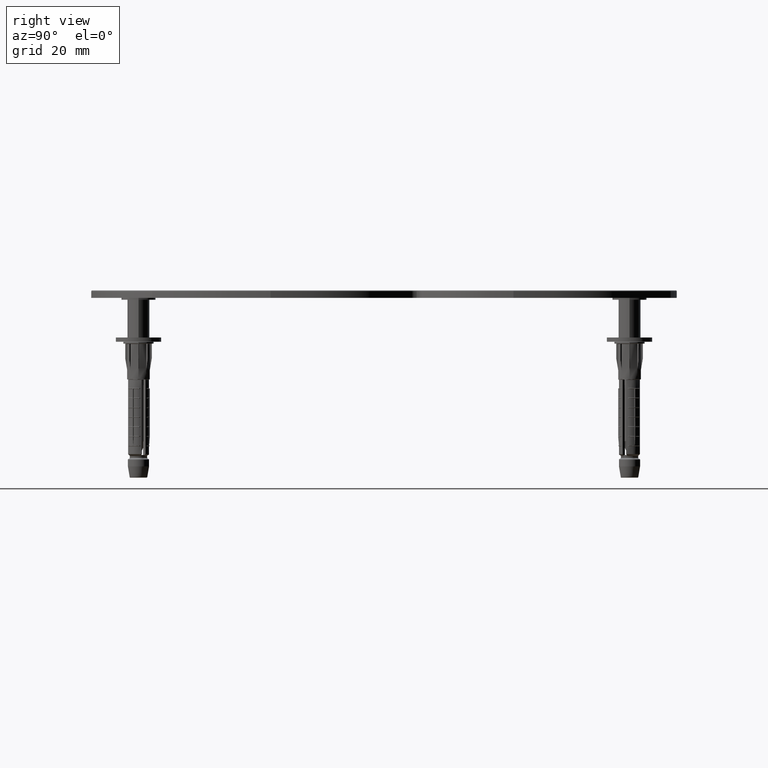
[diagram: clean part render]
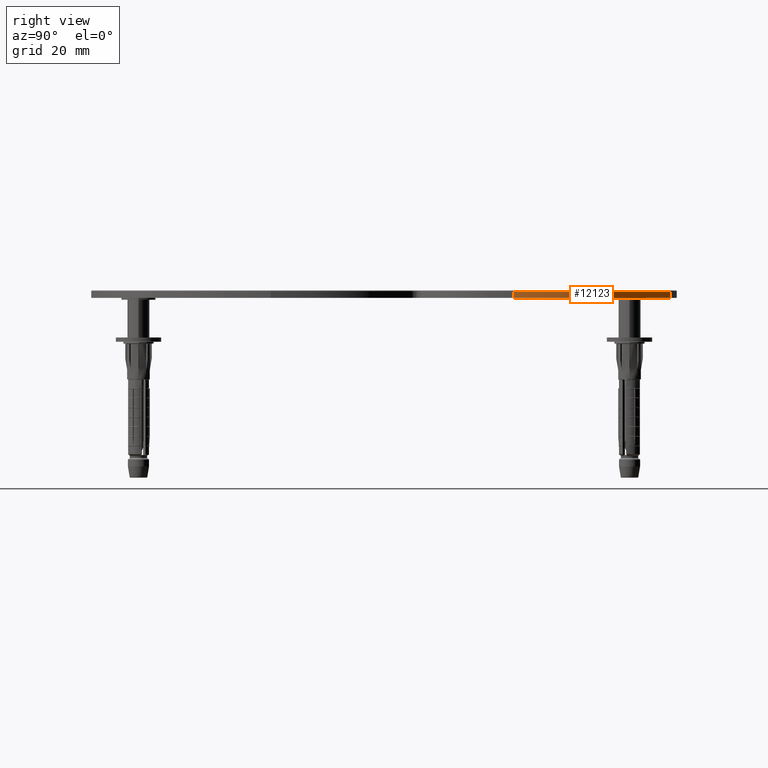
[diagram: same view with one face highlighted and labeled with its STEP entity id]
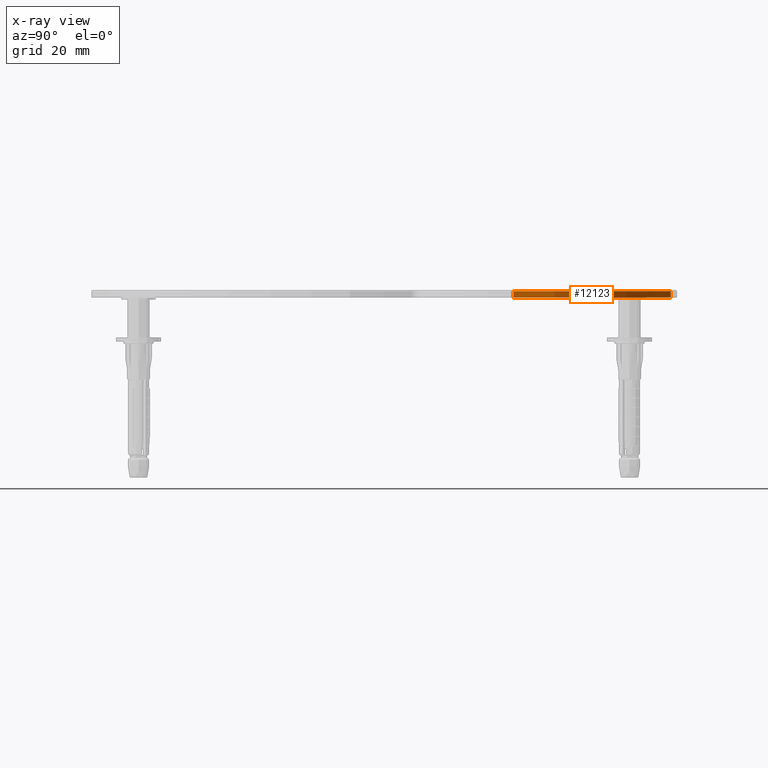
[diagram: x-ray of the same camera — body ghosted, the highlighted face saturated]
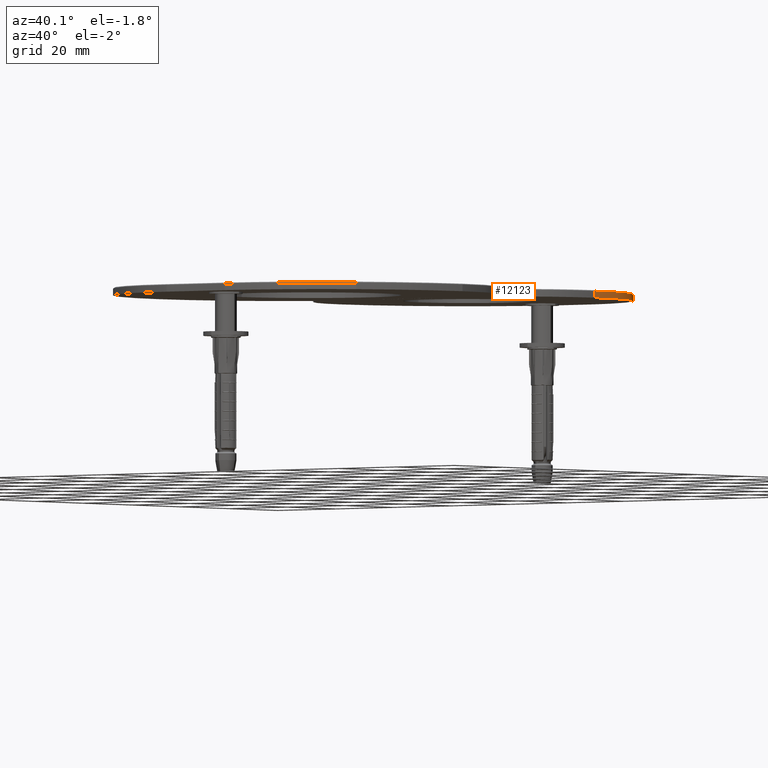
[diagram: same view with one face highlighted and labeled with its STEP entity id]
A machine part, right view. The second image highlights one B-rep face of the part: STEP entity #12123.
The next image is the same camera in x-ray: the body ghosted, the highlighted face saturated — about 0% of this face is hidden behind the body in this view.
A second angle (auxiliary view) of the same face is appended — the face is thin or edge-on in the first view.
In plain terms, the highlighted cylindrical surface (partial cylindrical patch) has radius 43.9541 mm, axis along (-0, -0, -1).
Its self-contained STEP definition (entity closure, byte-faithful):
#2054 = AXIS2_PLACEMENT_3D ( 'NONE', #9475, #18590, #12637 ) ;
#3456 = CARTESIAN_POINT ( 'NONE',  ( 43.95411394600482424, 111.7999999999999972, 1.750000000000000000 ) ) ;
#3809 = VERTEX_POINT ( 'NONE', #28980 ) ;
#3948 = CARTESIAN_POINT ( 'NONE',  ( 0.000000000000000000, 111.7999999999999972, 0.000000000000000000 ) ) ;
#5041 = AXIS2_PLACEMENT_3D ( 'NONE', #16736, #7198, #13512 ) ;
#5667 = CARTESIAN_POINT ( 'NONE',  ( 14.25389544789701368, 153.3787277022613580, 2.000000000000000000 ) ) ;
#7198 = DIRECTION ( 'NONE',  ( -0.000000000000000000, -0.000000000000000000, -1.000000000000000000 ) ) ;
#7592 = ORIENTED_EDGE ( 'NONE', *, *, #31120, .T. ) ;
#7797 = CYLINDRICAL_SURFACE ( 'NONE', #5041, 43.95411394600482424 ) ;
#8268 = EDGE_CURVE ( 'NONE', #34721, #33114, #20127, .T. ) ;
#9456 = CARTESIAN_POINT ( 'NONE',  ( 43.95411394600482424, 111.7999999999999972, 0.000000000000000000 ) ) ;
#9475 = CARTESIAN_POINT ( 'NONE',  ( 0.000000000000000000, 111.7999999999999972, 1.750000000000000000 ) ) ;
#10230 = AXIS2_PLACEMENT_3D ( 'NONE', #3948, #35199, #31808 ) ;
#10238 = FACE_OUTER_BOUND ( 'NONE', #32060, .T. ) ;
#11925 = DIRECTION ( 'NONE',  ( -0.000000000000000000, -0.000000000000000000, -1.000000000000000000 ) ) ;
#12123 = ADVANCED_FACE ( 'NONE', ( #10238 ), #7797, .T. ) ;
#12378 = VECTOR ( 'NONE', #11925, 1000.000000000000000 ) ;
#12637 = DIRECTION ( 'NONE',  ( 1.000000000000000000, 0.000000000000000000, 0.000000000000000000 ) ) ;
#13512 = DIRECTION ( 'NONE',  ( -1.000000000000000000, 0.000000000000000000, 0.000000000000000000 ) ) ;
#14340 = CARTESIAN_POINT ( 'NONE',  ( 14.25389544789701368, 153.3787277022613580, 0.000000000000000000 ) ) ;
#16736 = CARTESIAN_POINT ( 'NONE',  ( 0.000000000000000000, 111.7999999999999972, 2.000000000000000000 ) ) ;
#17281 = ORIENTED_EDGE ( 'NONE', *, *, #8268, .T. ) ;
#18486 = VERTEX_POINT ( 'NONE', #3456 ) ;
#18590 = DIRECTION ( 'NONE',  ( -0.000000000000000000, -0.000000000000000000, -1.000000000000000000 ) ) ;
#20127 = CIRCLE ( 'NONE', #10230, 43.95411394600482424 ) ;
#20664 = LINE ( 'NONE', #27322, #12378 ) ;
#22648 = ORIENTED_EDGE ( 'NONE', *, *, #39400, .T. ) ;
#24570 = EDGE_CURVE ( 'NONE', #3809, #33114, #24961, .T. ) ;
#24622 = CIRCLE ( 'NONE', #2054, 43.95411394600482424 ) ;
#24961 = LINE ( 'NONE', #5667, #28863 ) ;
#27322 = CARTESIAN_POINT ( 'NONE',  ( 43.95411394600482424, 111.7999999999999972, 2.000000000000000000 ) ) ;
#27388 = DIRECTION ( 'NONE',  ( -0.000000000000000000, -0.000000000000000000, -1.000000000000000000 ) ) ;
#27419 = ORIENTED_EDGE ( 'NONE', *, *, #24570, .F. ) ;
#28863 = VECTOR ( 'NONE', #27388, 1000.000000000000000 ) ;
#28980 = CARTESIAN_POINT ( 'NONE',  ( 14.25389544789701368, 153.3787277022613580, 1.750000000000000000 ) ) ;
#31120 = EDGE_CURVE ( 'NONE', #18486, #34721, #20664, .T. ) ;
#31808 = DIRECTION ( 'NONE',  ( -1.000000000000000000, 0.000000000000000000, 0.000000000000000000 ) ) ;
#32060 = EDGE_LOOP ( 'NONE', ( #27419, #22648, #7592, #17281 ) ) ;
#33114 = VERTEX_POINT ( 'NONE', #14340 ) ;
#34721 = VERTEX_POINT ( 'NONE', #9456 ) ;
#35199 = DIRECTION ( 'NONE',  ( 0.000000000000000000, 0.000000000000000000, 1.000000000000000000 ) ) ;
#39400 = EDGE_CURVE ( 'NONE', #3809, #18486, #24622, .T. ) ;